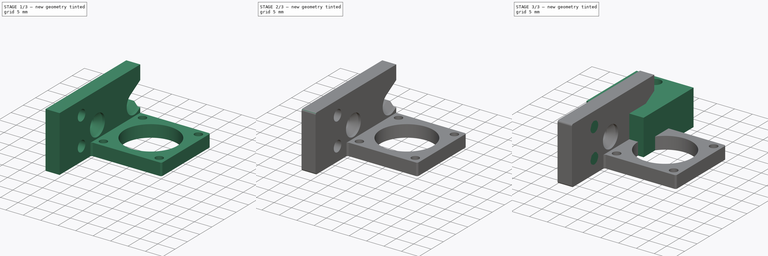
[diagram: build sequence overview — one tinted view per stage of 3, left to right]
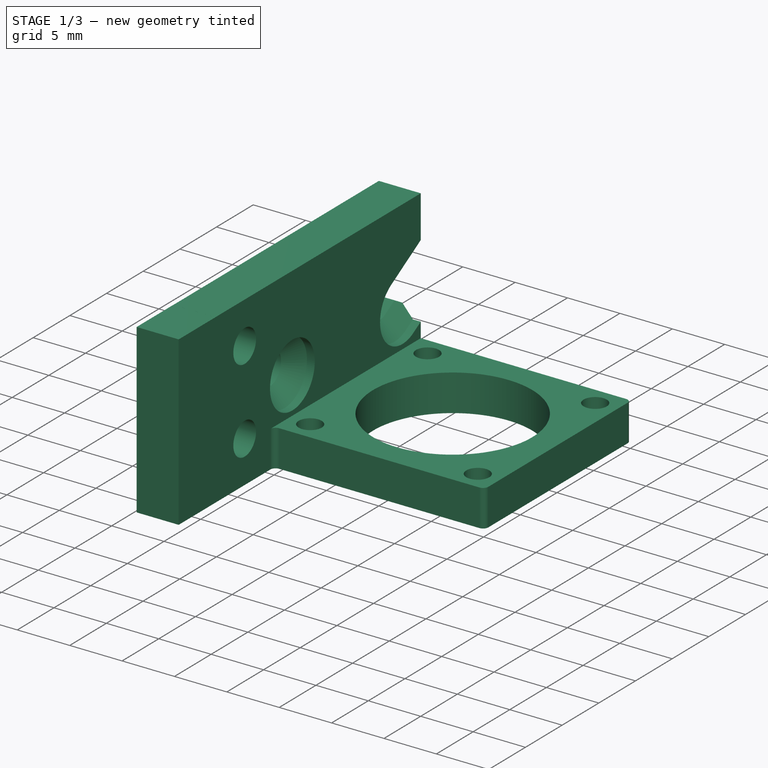
[diagram: stage 1 of 3 — iso view after this stage's code; geometry added in this stage tinted green]
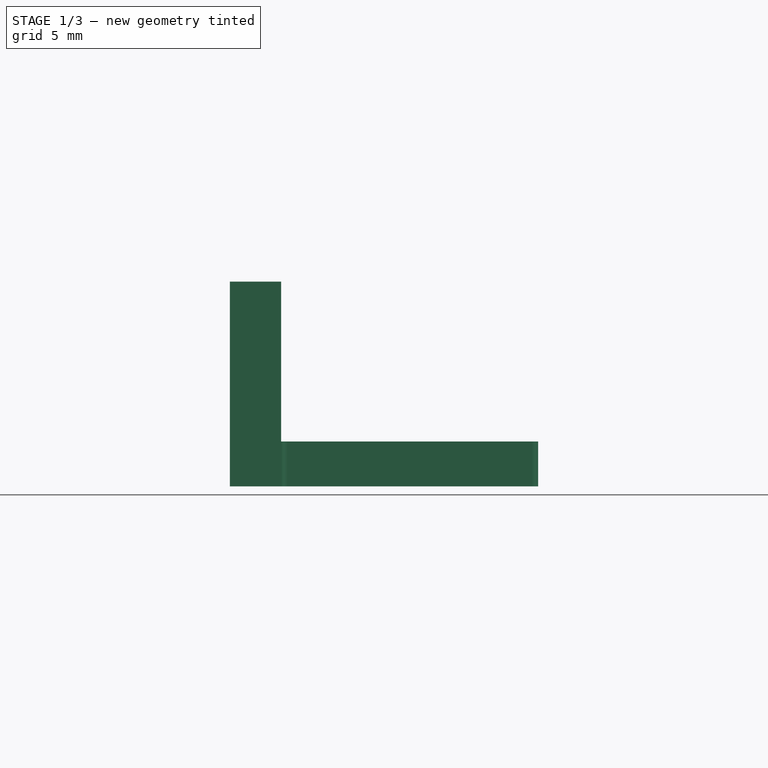
[diagram: stage 1 of 3 — front view after this stage's code; geometry added in this stage tinted green]
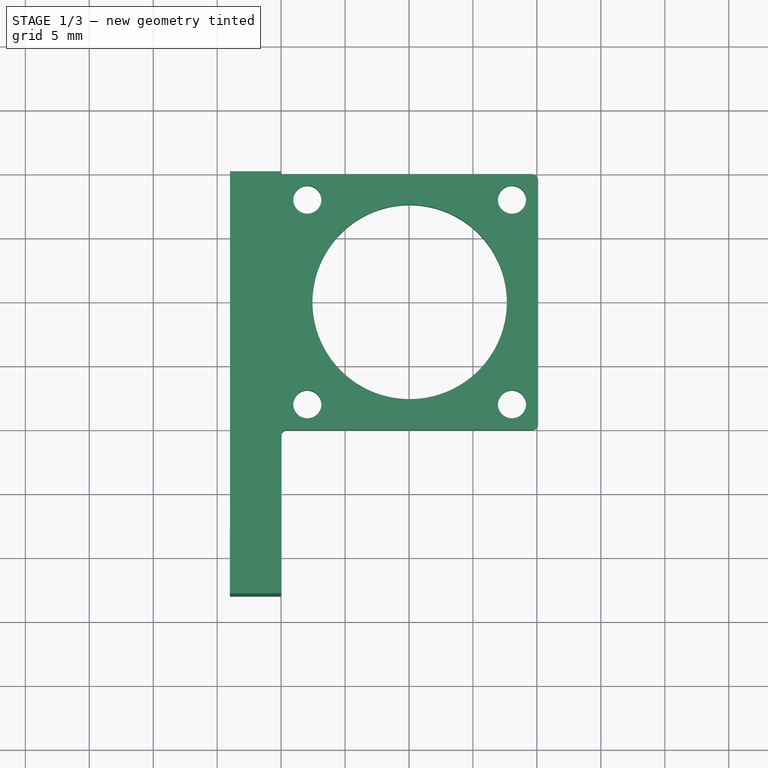
[diagram: stage 1 of 3 — top view after this stage's code; geometry added in this stage tinted green]
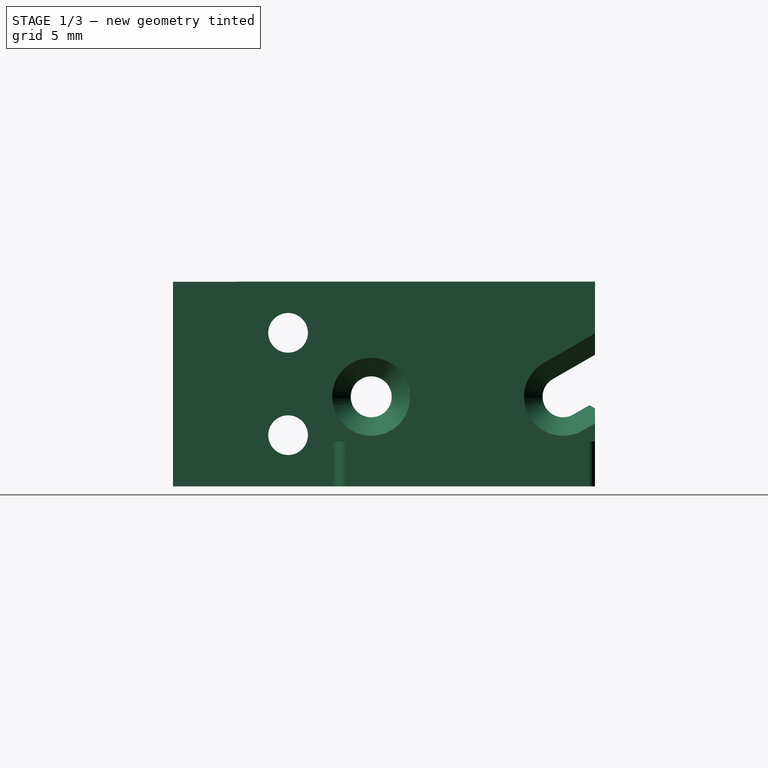
[diagram: stage 1 of 3 — right view after this stage's code; geometry added in this stage tinted green]
FCSTD DOCUMENT  (FreeCAD 0.18.4R)
Label: support_nema8_right
License: All rights reserved
LicenseURL: http://en.wikipedia.org/wiki/All_rights_reserved
objects: Sketcher::SketchObject×3, PartDesign::Pad×3, Part::Feature×2, PartDesign::Fillet×2, PartDesign::Body×2, PartDesign::FeatureBase×1, PartDesign::ShapeBinder×1
note: 17 computed .brp shape members not serialized (recipe doc carries the construction recipe); baked Part::Feature solids carry a one-line shape summary decoded from their .brp

FEATURE [Part::Feature] Part__Feature  label="FusionComponent"
  shape: bbox 24.1 x 28 x 16 mm, 33 faces (baked)
FEATURE [Part::Feature] Part__Feature001  label="FusionComponent001"
  Placement = pos=(-4,-20,0) rot=(-0.57735,0.57735,0.57735;4.18879rad)
  shape: bbox 9.5 x 13 x 16 mm, 68 faces (baked)
FEATURE [PartDesign::FeatureBase] BaseFeature
  BaseFeature = -> Part__Feature
FEATURE [Sketcher::SketchObject] Sketch
  MapMode = 5
  Placement = pos=(2.176e-13,-28,0) rot=(1,0,0;1.5708rad)
  Support = -> [BaseFeature]
  sketch-geometry (4):
    g0: LineSegment StartX=0 StartY=0 StartZ=0 EndX=-4.01108 EndY=0 EndZ=0
    g1: LineSegment StartX=-4.01108 StartY=0 StartZ=0 EndX=-4.01108 EndY=15.9989 EndZ=0
    g2: LineSegment StartX=-4.01108 StartY=15.9989 StartZ=0 EndX=0 EndY=15.9989 EndZ=0
    g3: LineSegment StartX=0 StartY=15.9989 StartZ=0 EndX=0 EndY=0 EndZ=0
  constraints (9):
    c: Coincident(g0,g1)
    c: Coincident(g1,g2)
    c: Coincident(g2,g3)
    c: Coincident(g3,g0)
    c: Horizontal(g0)
    c: Horizontal(g2)
    c: Vertical(g1)
    c: Vertical(g3)
    c: Coincident(g0,g-1)
FEATURE [PartDesign::Pad] Pad
  BaseFeature = -> BaseFeature
  Length = 5
  Length2 = 100
  Profile = -> Sketch
  Type = 0
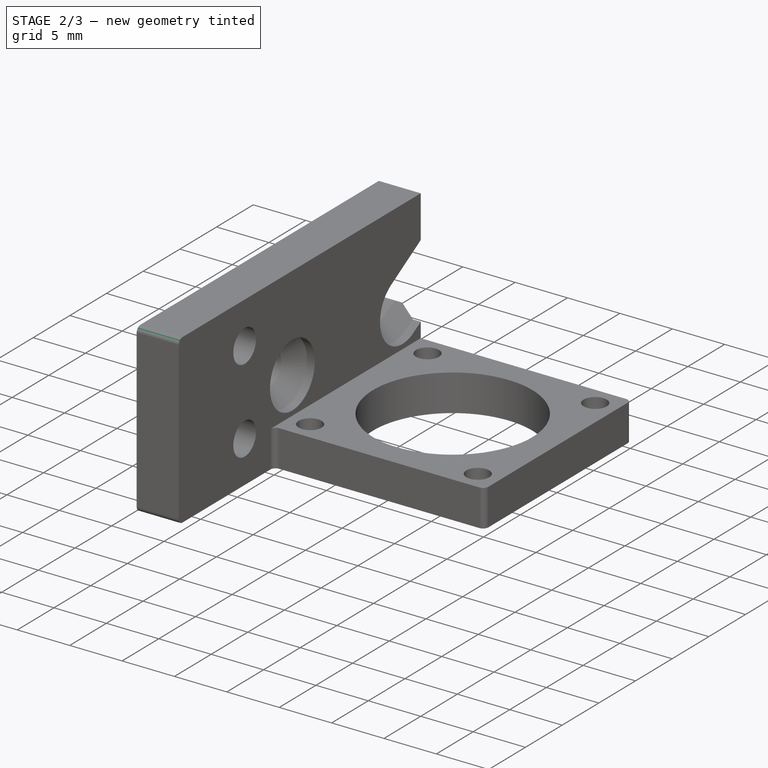
[diagram: stage 2 of 3 — iso view after this stage's code; geometry added in this stage tinted green]
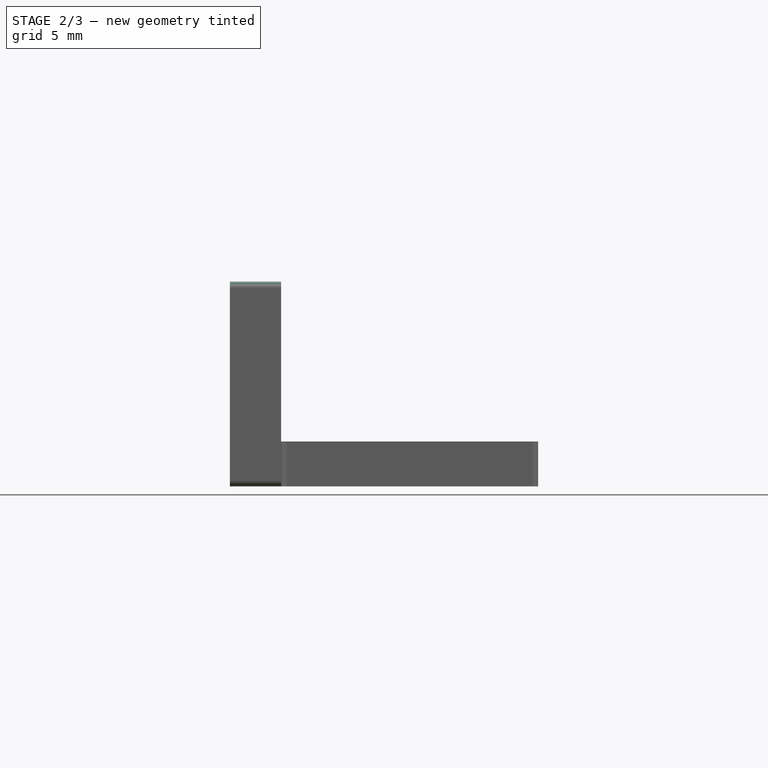
[diagram: stage 2 of 3 — front view after this stage's code; geometry added in this stage tinted green]
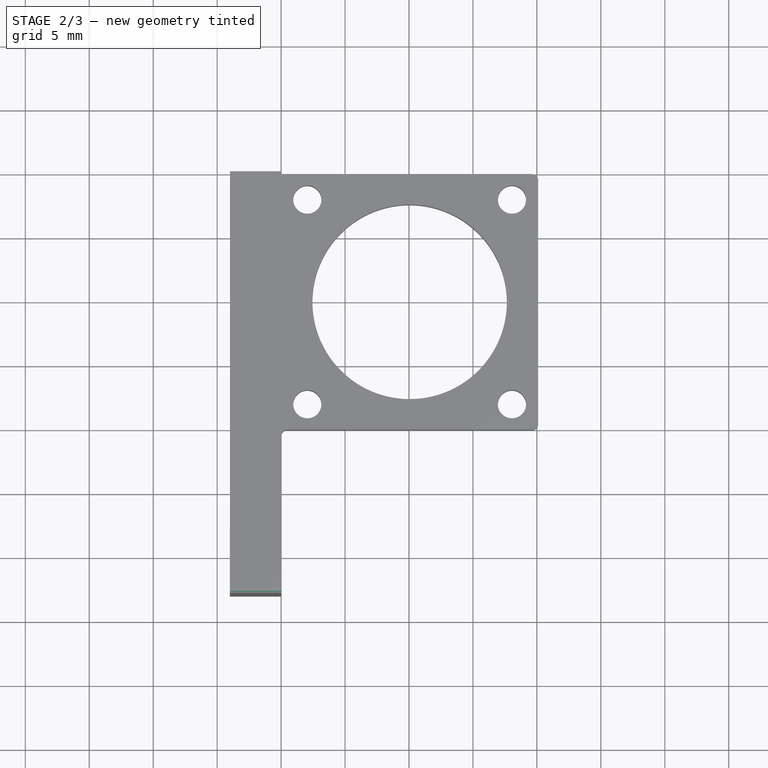
[diagram: stage 2 of 3 — top view after this stage's code; geometry added in this stage tinted green]
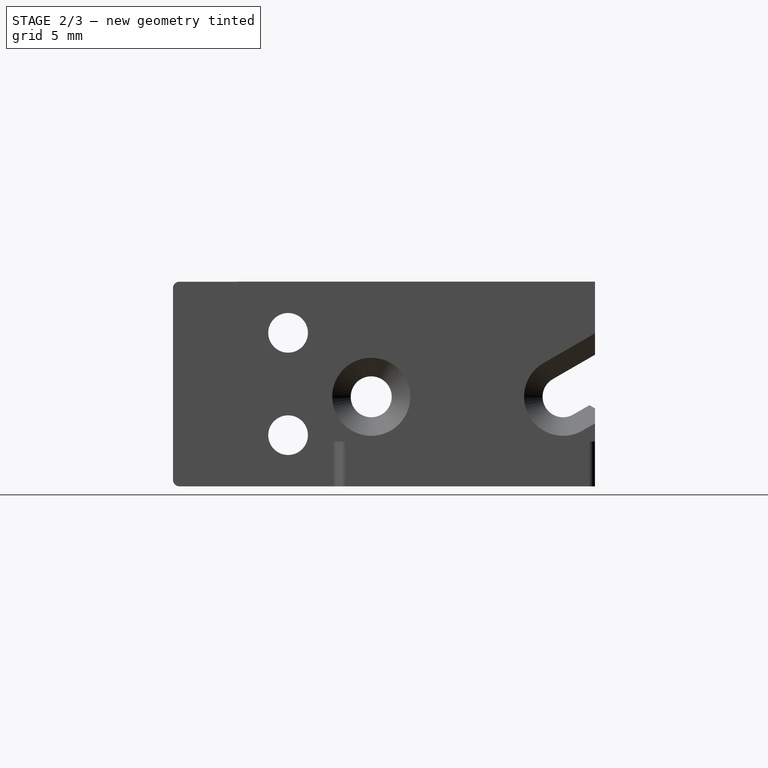
[diagram: stage 2 of 3 — right view after this stage's code; geometry added in this stage tinted green]
FEATURE [PartDesign::Fillet] Fillet
  Base = -> Pad [Edge94]
  BaseFeature = -> Pad
  Radius = 0.5
FEATURE [PartDesign::Fillet] Fillet001
  Base = -> Fillet [Edge20]
  BaseFeature = -> Fillet
  Radius = 0.5
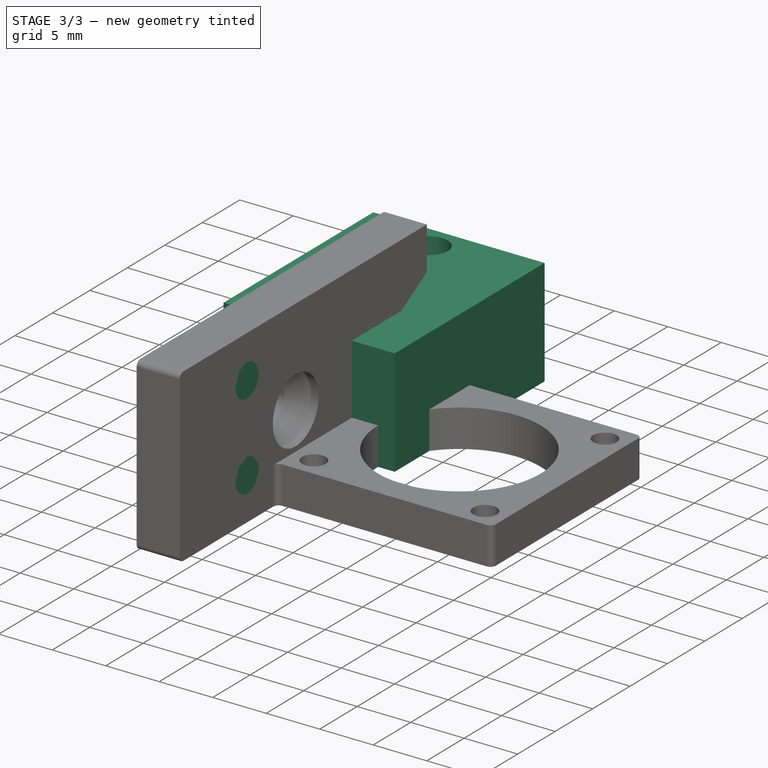
[diagram: stage 3 of 3 — iso view after this stage's code; geometry added in this stage tinted green]
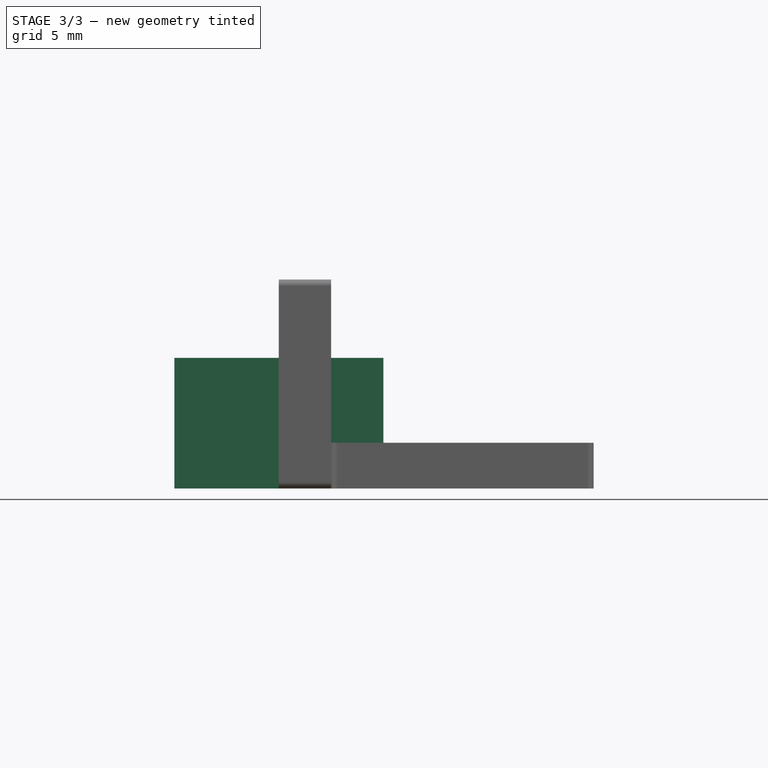
[diagram: stage 3 of 3 — front view after this stage's code; geometry added in this stage tinted green]
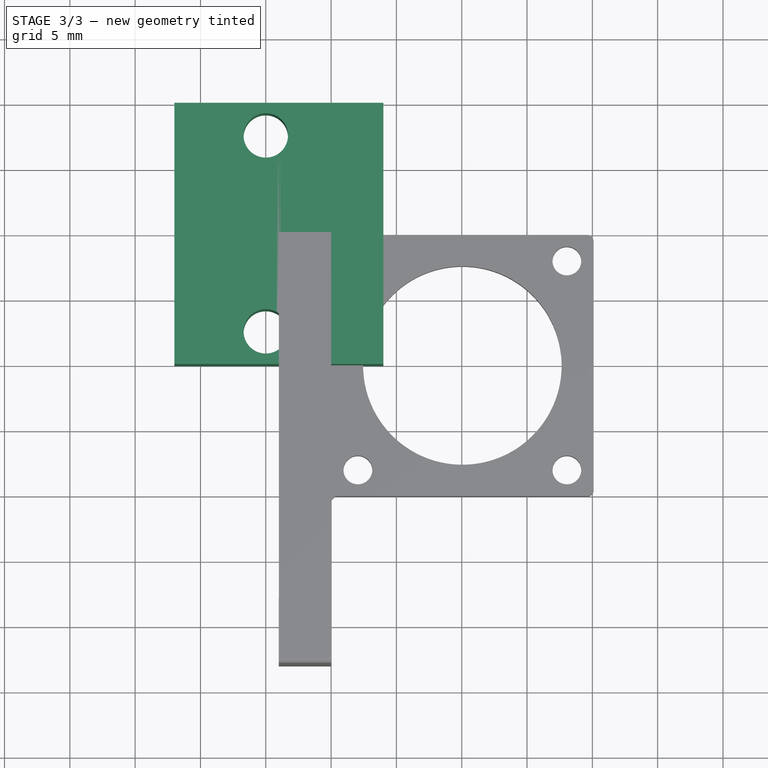
[diagram: stage 3 of 3 — top view after this stage's code; geometry added in this stage tinted green]
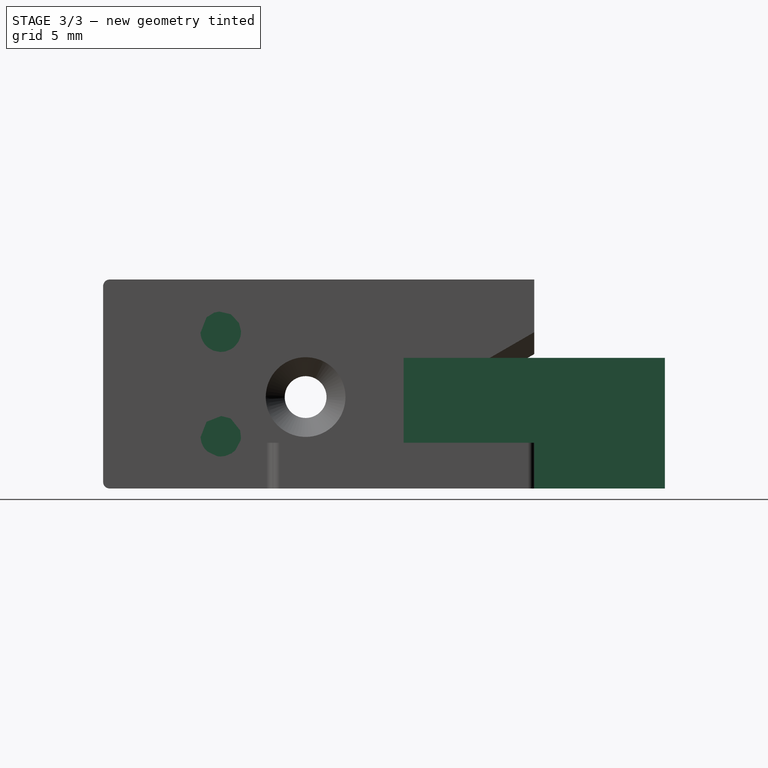
[diagram: stage 3 of 3 — right view after this stage's code; geometry added in this stage tinted green]
FEATURE [Sketcher::SketchObject] Sketch001
  MapMode = 5
  Support = -> [XY_Plane001]
  sketch-geometry (6):
    g0: LineSegment StartX=-12 StartY=-10 StartZ=0 EndX=4.00441 EndY=-10 EndZ=0
    g1: LineSegment StartX=4.00441 StartY=-10 StartZ=0 EndX=4.00441 EndY=10 EndZ=0
    g2: LineSegment StartX=4.00441 StartY=10 StartZ=0 EndX=-12 EndY=10 EndZ=0
    g3: LineSegment StartX=-12 StartY=10 StartZ=0 EndX=-12 EndY=-10 EndZ=0
    g4: Circle CenterX=-5 CenterY=7.5 CenterZ=0 NormalX=0 NormalY=0 NormalZ=1 AngleXU=0 Radius=1.7
    g5: Circle CenterX=-5 CenterY=-7.5 CenterZ=0 NormalX=0 NormalY=0 NormalZ=1 AngleXU=0 Radius=1.7
  constraints (15):
    c: Coincident(g0,g1)
    c: Coincident(g1,g2)
    c: Coincident(g2,g3)
    c: Coincident(g3,g0)
    c: Horizontal(g0)
    c: Vertical(g1)
    c: DistanceY(g3,g3) = 20
    c: Radius(g4) = 1.7
    c: Radius(g5) = 1.7
    c: Distance(g5,g4) = 15
    c: Symmetric(g5,g4,g-1)
    c: Distance(g2,g-2) = 12
    c: DistanceY(g-1,g1) = 10
    c: DistanceY(g-1,g2) = 10
    c: DistanceX(g-2,g0) = -12
FEATURE [PartDesign::Pad] Pad001
  Length = 10
  Length2 = 100
  Profile = -> Sketch001
  Type = 0
FEATURE [PartDesign::Body] Body001
  Group = -> [Sketch001,Pad001]
  Origin = -> Origin001
  Placement = pos=(-3.5,-10,12) rot=(0,-1,0;1.5708rad)
  Tip = -> Pad001
FEATURE [PartDesign::ShapeBinder] CopyPart__Feature001
  Placement = pos=(-4,-20,0) rot=(-0.57735,0.57735,0.57735;4.18879rad)
  TraceSupport = false
FEATURE [Sketcher::SketchObject] Sketch002
  MapMode = 5
  Placement = pos=(-4,-20,0) rot=(0.57735,-0.57735,0.57735;4.18879rad)
  Support = -> [CopyPart__Feature001]
  sketch-geometry (4):
    g0: LineSegment StartX=1.00944 StartY=-14.0288 StartZ=0 EndX=6.94906 EndY=-14.0288 EndZ=0
    g1: LineSegment StartX=6.94906 StartY=-14.0288 StartZ=0 EndX=6.94906 EndY=-2.27589 EndZ=0
    g2: LineSegment StartX=6.94906 StartY=-2.27589 StartZ=0 EndX=1.00944 EndY=-2.27589 EndZ=0
    g3: LineSegment StartX=1.00944 StartY=-2.27589 StartZ=0 EndX=1.00944 EndY=-14.0288 EndZ=0
  constraints (8):
    c: Coincident(g0,g1)
    c: Coincident(g1,g2)
    c: Coincident(g2,g3)
    c: Coincident(g3,g0)
    c: Horizontal(g0)
    c: Horizontal(g2)
    c: Vertical(g1)
    c: Vertical(g3)
FEATURE [PartDesign::Pad] Pad002
  BaseFeature = -> Fillet001
  Length = 4
  Length2 = 100
  Profile = -> Sketch002
  Type = 0
FEATURE [PartDesign::Body] Body
  BaseFeature = -> Part__Feature
  Group = -> [BaseFeature,Sketch,Pad,Fillet,Fillet001,CopyPart__Feature001,Sketch002,Pad002]
  Origin = -> Origin
  Tip = -> Pad002
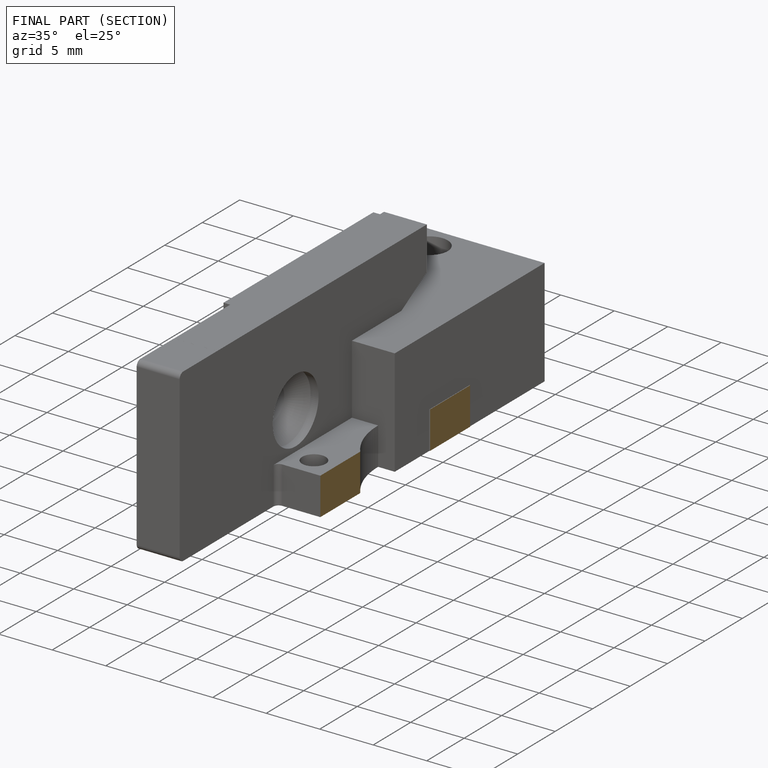
[diagram: finished part — half-section view (interior)]
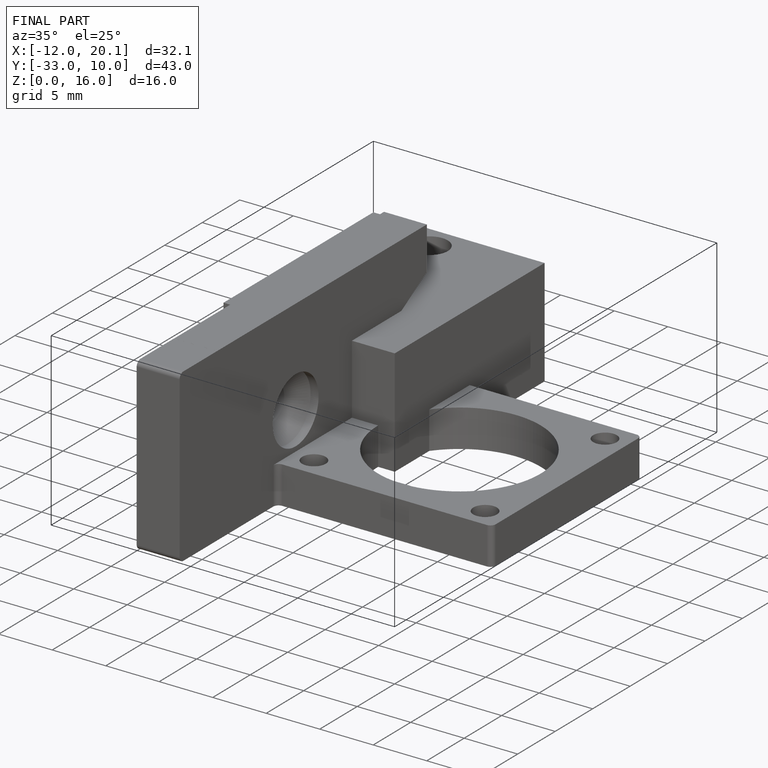
[diagram: finished part — iso view with bounding-box wireframe]
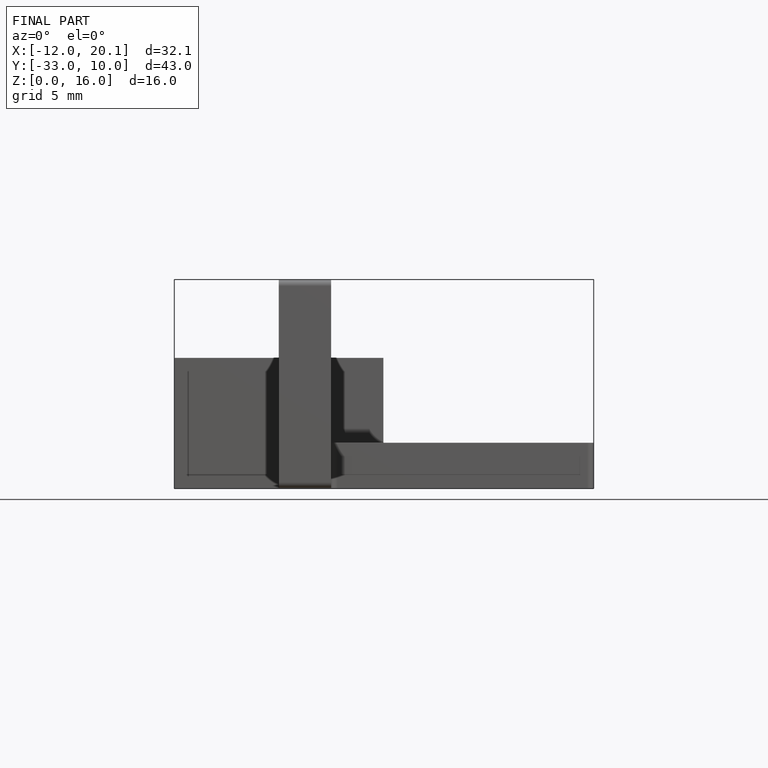
[diagram: finished part — front view with bounding-box wireframe]
